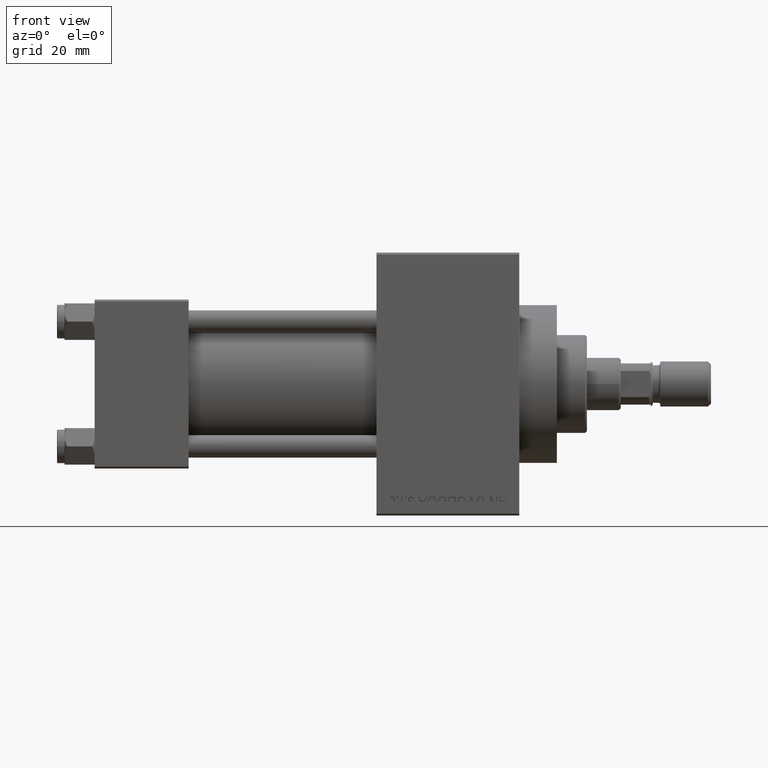
[diagram: clean part render]
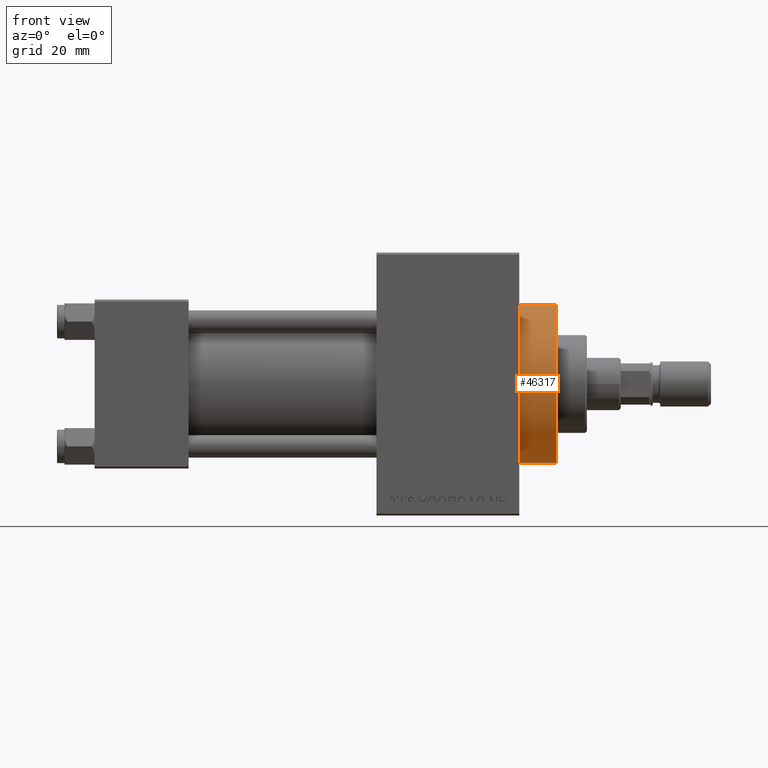
[diagram: same view with one face highlighted and labeled with its STEP entity id]
A machine part, front view. The second image highlights one B-rep face of the part: STEP entity #46317.
In plain terms, the highlighted cylindrical surface (partial cylindrical patch) has radius 21 mm, axis along (-1, -0, -0).
Its self-contained STEP definition (entity closure, byte-faithful):
#4232 = CARTESIAN_POINT ( 'NONE',  ( 113.0000000000000142, 0.000000000000000000, 21.00000000000000000 ) ) ;
#4236 = DIRECTION ( 'NONE',  ( 1.000000000000000000, 0.000000000000000000, 0.000000000000000000 ) ) ;
#4478 = CARTESIAN_POINT ( 'NONE',  ( 113.0000000000000142, 0.000000000000000000, 0.000000000000000000 ) ) ;
#4930 = CARTESIAN_POINT ( 'NONE',  ( 123.0000000000000142, 0.000000000000000000, 0.000000000000000000 ) ) ;
#5555 = EDGE_CURVE ( 'NONE', #37567, #17385, #31849, .T. ) ;
#7973 = CIRCLE ( 'NONE', #42371, 21.00000000000000000 ) ;
#9296 = ORIENTED_EDGE ( 'NONE', *, *, #37577, .F. ) ;
#9403 = CARTESIAN_POINT ( 'NONE',  ( 113.0000000000000142, 2.571758278209441661E-15, -21.00000000000000000 ) ) ;
#10092 = LINE ( 'NONE', #18857, #35168 ) ;
#13868 = DIRECTION ( 'NONE',  ( -1.000000000000000000, -0.000000000000000000, -0.000000000000000000 ) ) ;
#14146 = ORIENTED_EDGE ( 'NONE', *, *, #5555, .T. ) ;
#14356 = CARTESIAN_POINT ( 'NONE',  ( 123.0000000000000142, 0.000000000000000000, 21.00000000000000000 ) ) ;
#16132 = CARTESIAN_POINT ( 'NONE',  ( 123.0000000000000142, 2.571758278209441661E-15, -21.00000000000000000 ) ) ;
#17198 = CYLINDRICAL_SURFACE ( 'NONE', #47483, 21.00000000000000000 ) ;
#17385 = VERTEX_POINT ( 'NONE', #4232 ) ;
#17445 = DIRECTION ( 'NONE',  ( 0.000000000000000000, 0.000000000000000000, 1.000000000000000000 ) ) ;
#18857 = CARTESIAN_POINT ( 'NONE',  ( 123.0000000000000142, 2.571758278209441661E-15, -21.00000000000000000 ) ) ;
#19082 = VECTOR ( 'NONE', #19856, 1000.000000000000000 ) ;
#19374 = CARTESIAN_POINT ( 'NONE',  ( 123.0000000000000142, 0.000000000000000000, 21.00000000000000000 ) ) ;
#19734 = DIRECTION ( 'NONE',  ( 1.000000000000000000, 0.000000000000000000, 0.000000000000000000 ) ) ;
#19856 = DIRECTION ( 'NONE',  ( -1.000000000000000000, -0.000000000000000000, -0.000000000000000000 ) ) ;
#20511 = DIRECTION ( 'NONE',  ( 0.000000000000000000, 0.000000000000000000, -1.000000000000000000 ) ) ;
#20950 = CARTESIAN_POINT ( 'NONE',  ( 123.0000000000000142, 0.000000000000000000, 0.000000000000000000 ) ) ;
#26115 = CIRCLE ( 'NONE', #45330, 21.00000000000000000 ) ;
#26995 = DIRECTION ( 'NONE',  ( 0.000000000000000000, 0.000000000000000000, -1.000000000000000000 ) ) ;
#27743 = EDGE_CURVE ( 'NONE', #17385, #45240, #26115, .T. ) ;
#27974 = EDGE_LOOP ( 'NONE', ( #9296, #40999, #14146, #44301 ) ) ;
#31849 = LINE ( 'NONE', #19374, #19082 ) ;
#32954 = DIRECTION ( 'NONE',  ( -1.000000000000000000, -0.000000000000000000, -0.000000000000000000 ) ) ;
#34274 = EDGE_CURVE ( 'NONE', #37567, #38204, #7973, .T. ) ;
#35168 = VECTOR ( 'NONE', #13868, 1000.000000000000000 ) ;
#35961 = FACE_OUTER_BOUND ( 'NONE', #27974, .T. ) ;
#37567 = VERTEX_POINT ( 'NONE', #14356 ) ;
#37577 = EDGE_CURVE ( 'NONE', #38204, #45240, #10092, .T. ) ;
#38204 = VERTEX_POINT ( 'NONE', #16132 ) ;
#40999 = ORIENTED_EDGE ( 'NONE', *, *, #34274, .F. ) ;
#42371 = AXIS2_PLACEMENT_3D ( 'NONE', #4930, #19734, #26995 ) ;
#44301 = ORIENTED_EDGE ( 'NONE', *, *, #27743, .T. ) ;
#45240 = VERTEX_POINT ( 'NONE', #9403 ) ;
#45330 = AXIS2_PLACEMENT_3D ( 'NONE', #4478, #4236, #20511 ) ;
#46317 = ADVANCED_FACE ( 'NONE', ( #35961 ), #17198, .T. ) ;
#47483 = AXIS2_PLACEMENT_3D ( 'NONE', #20950, #32954, #17445 ) ;